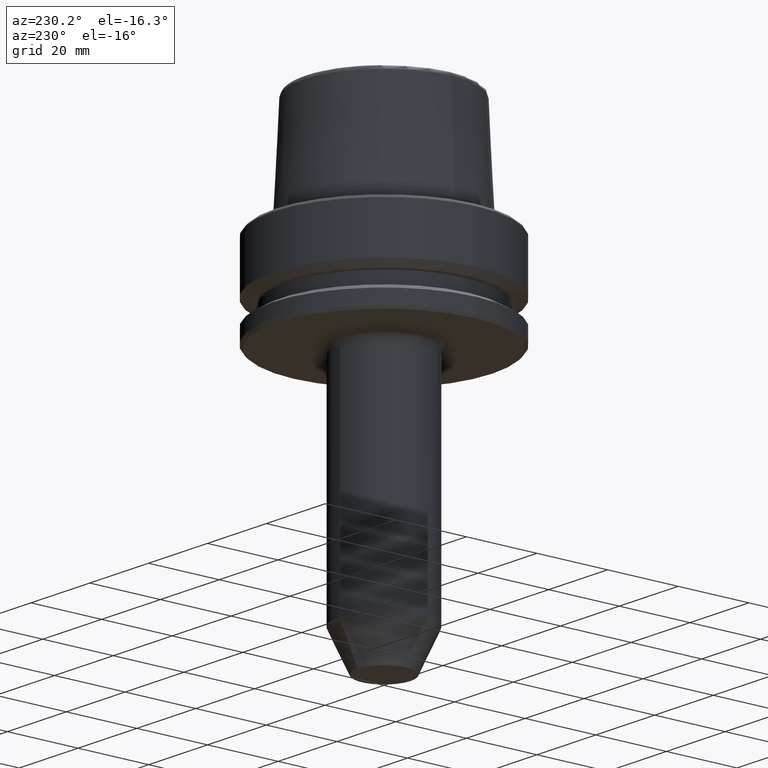
[diagram: clean part render]
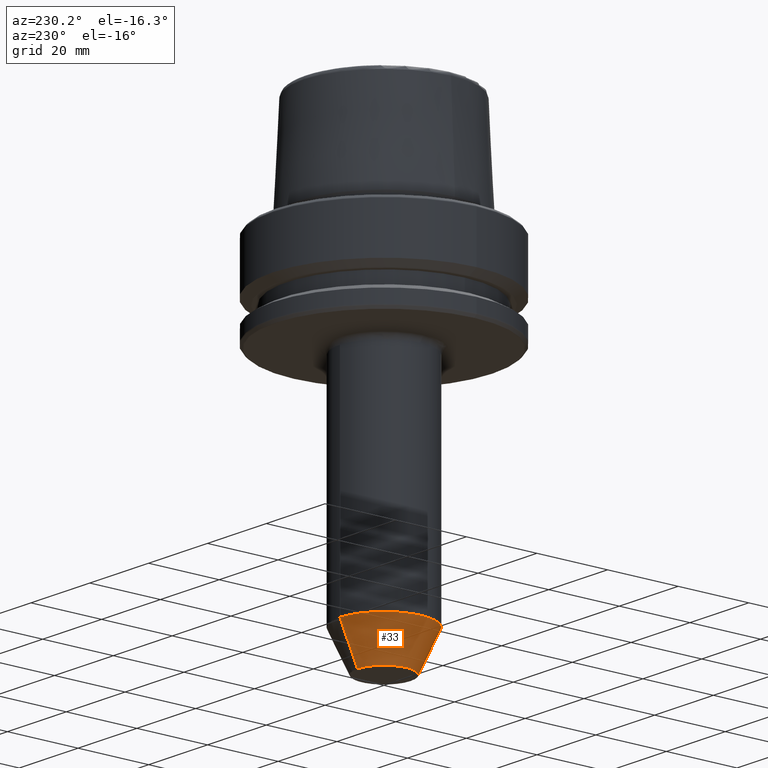
[diagram: same view with one face highlighted and labeled with its STEP entity id]
A machine part, auxiliary view. The second image highlights one B-rep face of the part: STEP entity #33.
In plain terms, the highlighted conical surface has half-angle 25 deg.
Its self-contained STEP definition (entity closure, byte-faithful):
#33 = ADVANCED_FACE ( 'NONE', ( #1059 ), #931, .T. ) ;
#46 = CARTESIAN_POINT ( 'NONE',  ( 1.224646799147352900E-015, 7.500000000000000000, -100.0000000000000000 ) ) ;
#126 = DIRECTION ( 'NONE',  ( -0.0000000000000000000, 5.792248374345589000E-017, -1.000000000000000000 ) ) ;
#158 = VERTEX_POINT ( 'NONE', #1266 ) ;
#169 = CARTESIAN_POINT ( 'NONE',  ( 0.0000000000000000000, 4.286263797015735700E-015, -100.0000000000000000 ) ) ;
#260 = DIRECTION ( 'NONE',  ( 0.0000000000000000000, 1.000000000000000000, 0.0000000000000000000 ) ) ;
#266 = EDGE_CURVE ( 'NONE', #758, #158, #440, .T. ) ;
#273 = DIRECTION ( 'NONE',  ( 5.175581015019632900E-017, 0.4226182617406972800, 0.9063077870366510500 ) ) ;
#348 = CARTESIAN_POINT ( 'NONE',  ( 0.0000000000000000000, -12.49999999999999300, -89.27746539745214700 ) ) ;
#369 = VERTEX_POINT ( 'NONE', #348 ) ;
#401 = CIRCLE ( 'NONE', #1137, 7.499999999999995600 ) ;
#421 = DIRECTION ( 'NONE',  ( 0.0000000000000000000, -5.792248374345589000E-017, 1.000000000000000000 ) ) ;
#440 = LINE ( 'NONE', #1185, #1031 ) ;
#517 = CARTESIAN_POINT ( 'NONE',  ( 0.0000000000000000000, 4.286263797015735700E-015, -100.0000000000000000 ) ) ;
#523 = ORIENTED_EDGE ( 'NONE', *, *, #893, .T. ) ;
#570 = ORIENTED_EDGE ( 'NONE', *, *, #1193, .T. ) ;
#639 = AXIS2_PLACEMENT_3D ( 'NONE', #517, #421, #924 ) ;
#641 = ORIENTED_EDGE ( 'NONE', *, *, #266, .F. ) ;
#715 = CARTESIAN_POINT ( 'NONE',  ( 0.0000000000000000000, 3.665187960811014000E-015, -89.27746539745214700 ) ) ;
#758 = VERTEX_POINT ( 'NONE', #46 ) ;
#812 = DIRECTION ( 'NONE',  ( 0.0000000000000000000, 1.000000000000000000, 0.0000000000000000000 ) ) ;
#860 = ORIENTED_EDGE ( 'NONE', *, *, #866, .F. ) ;
#862 = DIRECTION ( 'NONE',  ( -0.0000000000000000000, 5.792248374345589000E-017, -1.000000000000000000 ) ) ;
#866 = EDGE_CURVE ( 'NONE', #1063, #758, #401, .T. ) ;
#890 = CARTESIAN_POINT ( 'NONE',  ( 0.0000000000000000000, -7.499999999999991100, -100.0000000000000000 ) ) ;
#893 = EDGE_CURVE ( 'NONE', #1063, #369, #1125, .T. ) ;
#922 = AXIS2_PLACEMENT_3D ( 'NONE', #715, #126, #812 ) ;
#924 = DIRECTION ( 'NONE',  ( 0.0000000000000000000, -1.000000000000000000, 0.0000000000000000000 ) ) ;
#931 = CONICAL_SURFACE ( 'NONE', #639, 7.499999999999995600, 0.4363323129985800500 ) ;
#937 = CIRCLE ( 'NONE', #922, 12.49999999999999600 ) ;
#954 = CARTESIAN_POINT ( 'NONE',  ( 0.0000000000000000000, -7.499999999999991100, -100.0000000000000000 ) ) ;
#1031 = VECTOR ( 'NONE', #273, 1000.000000000000100 ) ;
#1059 = FACE_OUTER_BOUND ( 'NONE', #1078, .T. ) ;
#1063 = VERTEX_POINT ( 'NONE', #890 ) ;
#1073 = VECTOR ( 'NONE', #1159, 1000.000000000000000 ) ;
#1078 = EDGE_LOOP ( 'NONE', ( #641, #860, #523, #570 ) ) ;
#1125 = LINE ( 'NONE', #954, #1073 ) ;
#1137 = AXIS2_PLACEMENT_3D ( 'NONE', #169, #862, #260 ) ;
#1159 = DIRECTION ( 'NONE',  ( 0.0000000000000000000, -0.4226182617406973300, 0.9063077870366509400 ) ) ;
#1185 = CARTESIAN_POINT ( 'NONE',  ( 9.184850993605144000E-016, 7.500000000000000000, -100.0000000000000000 ) ) ;
#1193 = EDGE_CURVE ( 'NONE', #369, #158, #937, .T. ) ;
#1266 = CARTESIAN_POINT ( 'NONE',  ( 1.530808498934191100E-015, 12.50000000000000000, -89.27746539745214700 ) ) ;